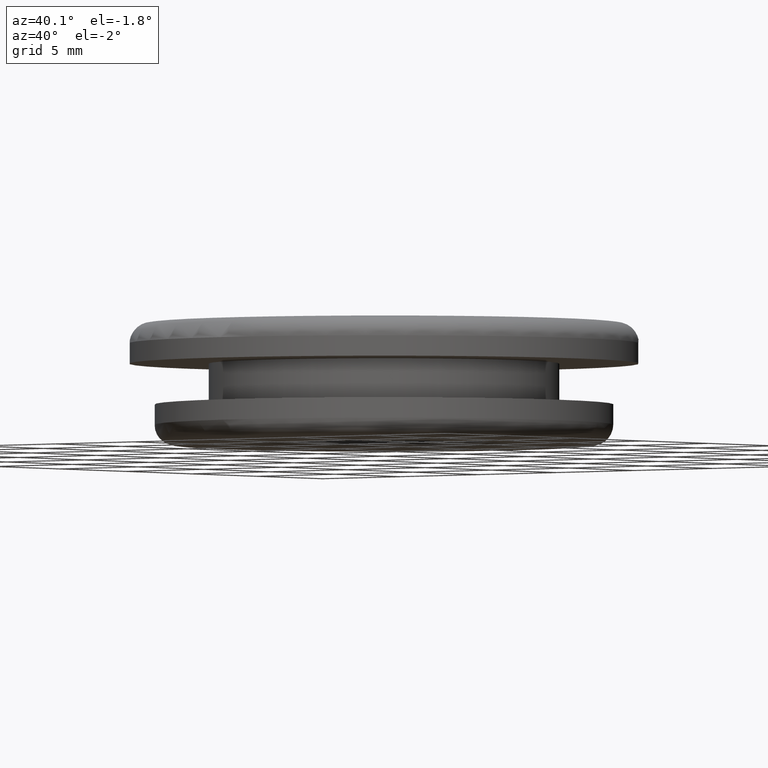
[diagram: clean part render]
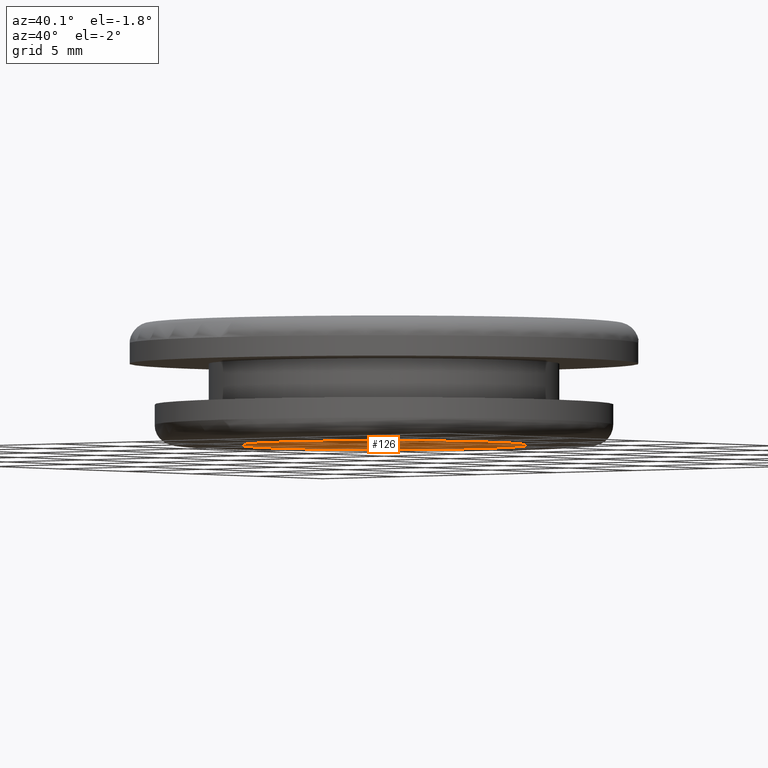
[diagram: same view with one face highlighted and labeled with its STEP entity id]
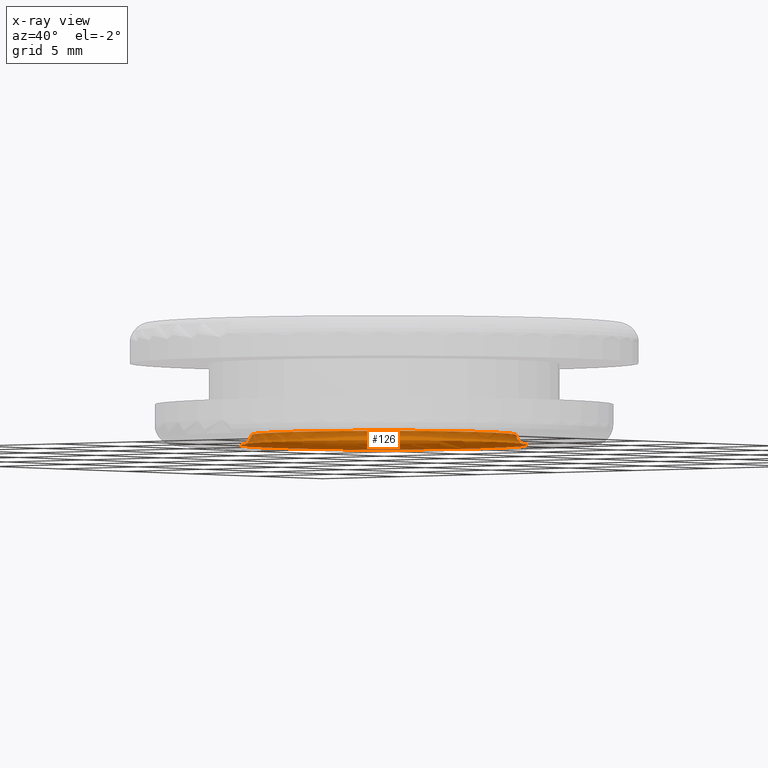
[diagram: x-ray of the same camera — body ghosted, the highlighted face saturated]
A machine part, auxiliary view. The second image highlights one B-rep face of the part: STEP entity #126.
The next image is the same camera in x-ray: the body ghosted, the highlighted face saturated — about 38% of this face is hidden behind the body in this view.
In plain terms, the highlighted toroidal blend (fillet) surface has major radius 7 mm and minor (blend) radius 0.5 mm.
Its self-contained STEP definition (entity closure, byte-faithful):
#24=FACE_BOUND('',#47,.T.);
#34=FACE_OUTER_BOUND('',#46,.T.);
#46=EDGE_LOOP('',(#101));
#47=EDGE_LOOP('',(#102));
#68=CIRCLE('',#141,6.5);
#69=CIRCLE('',#142,7.);
#79=VERTEX_POINT('',#213);
#80=VERTEX_POINT('',#215);
#90=EDGE_CURVE('',#79,#79,#68,.T.);
#91=EDGE_CURVE('',#80,#80,#69,.T.);
#101=ORIENTED_EDGE('',*,*,#90,.T.);
#102=ORIENTED_EDGE('',*,*,#91,.T.);
#123=TOROIDAL_SURFACE('',#140,7.,0.5);
#126=ADVANCED_FACE('',(#34,#24),#123,.T.);
#140=AXIS2_PLACEMENT_3D('',#212,#165,#166);
#141=AXIS2_PLACEMENT_3D('',#214,#167,#168);
#142=AXIS2_PLACEMENT_3D('',#216,#169,#170);
#165=DIRECTION('center_axis',(1.85037170770859E-16,0.,1.));
#166=DIRECTION('ref_axis',(1.,0.,-1.1842378929335E-16));
#167=DIRECTION('center_axis',(1.85037170770859E-16,0.,1.));
#168=DIRECTION('ref_axis',(1.,0.,-1.81478763640651E-16));
#169=DIRECTION('center_axis',(-1.85037170770859E-16,0.,-1.));
#170=DIRECTION('ref_axis',(1.,0.,-1.85037170770859E-16));
#212=CARTESIAN_POINT('Origin',(-1.01109596885505E-15,0.,-5.5));
#213=CARTESIAN_POINT('',(-6.5,-7.9602041944578E-16,-5.5));
#214=CARTESIAN_POINT('Origin',(-1.01109596885505E-15,0.,-5.5));
#215=CARTESIAN_POINT('',(-7.,8.57252759403147E-16,-6.));
#216=CARTESIAN_POINT('Origin',(-1.10361455424048E-15,0.,-6.));